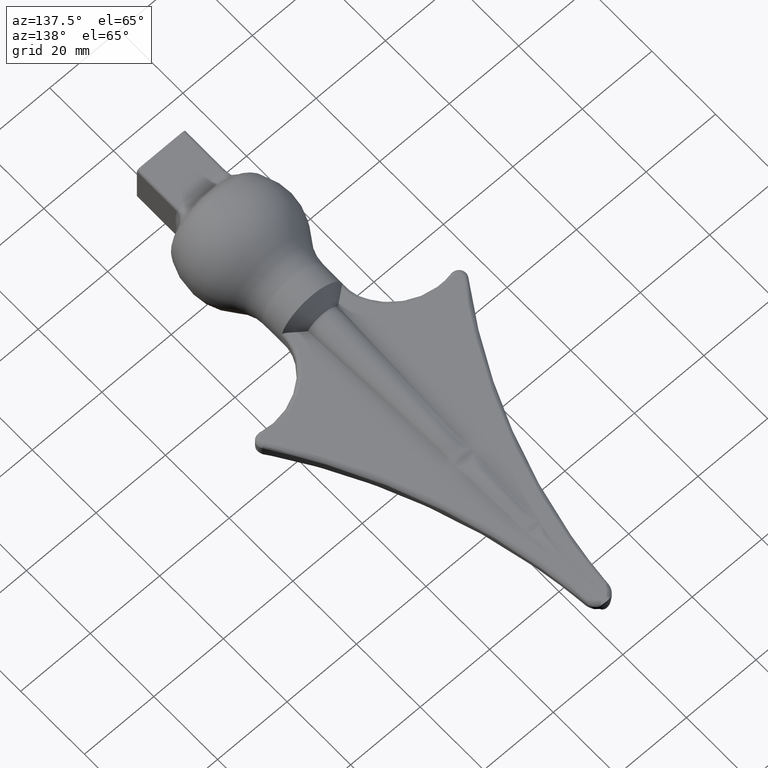
[diagram: clean part render]
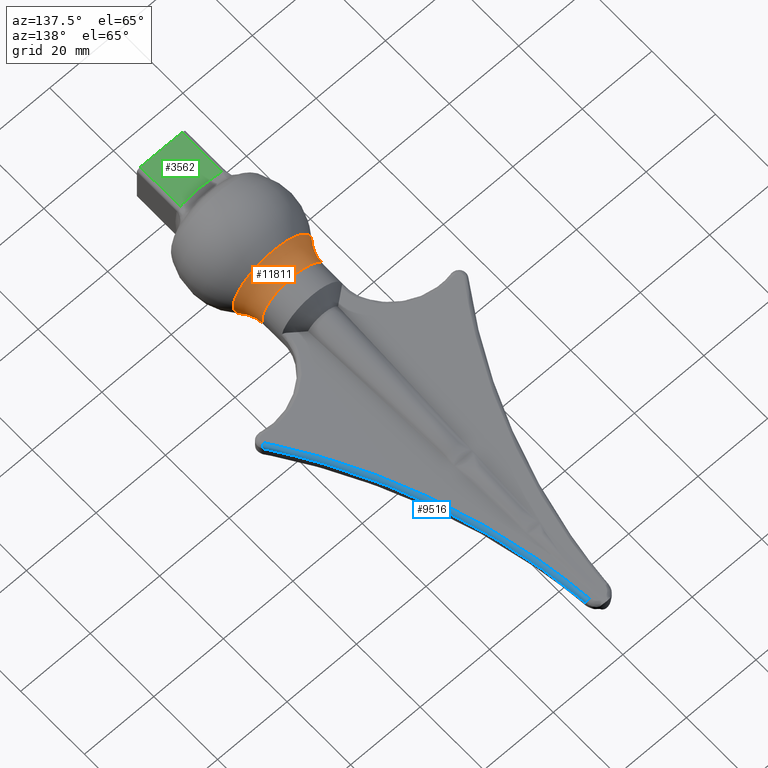
[diagram: same view with three faces highlighted in distinct colors, each labeled with its STEP entity id]
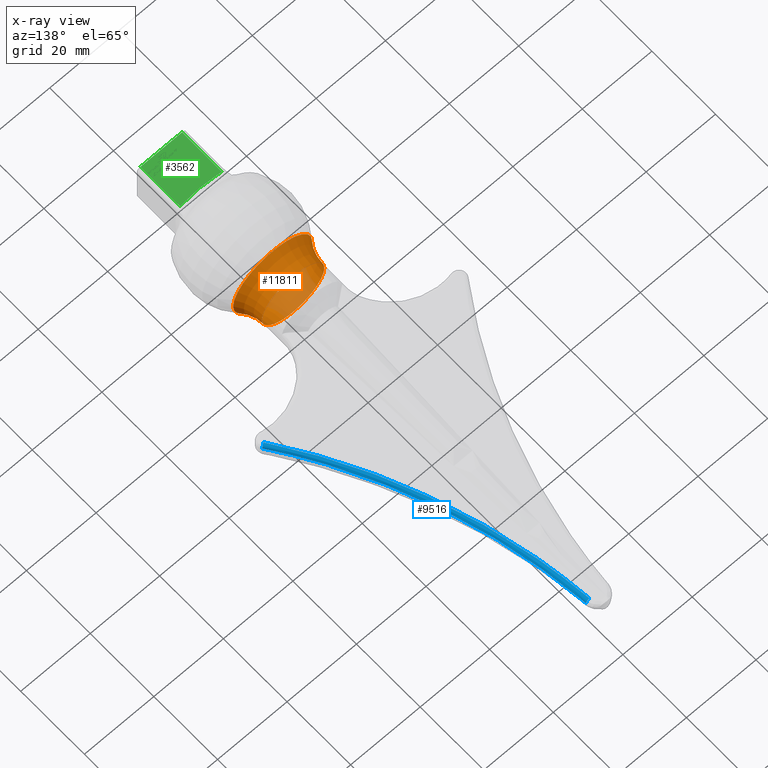
[diagram: x-ray of the same camera — body ghosted, the three highlighted faces saturated]
A machine part, auxiliary view with three faces highlighted in distinct colors.
The next image is the same camera in x-ray (body ghosted, the three faces saturated) — at least one of them is partly hidden behind the body in this view.
Their STEP definitions:

[orange] entity #11811 — the highlighted toroidal blend (fillet) surface has major radius 19 mm and minor (blend) radius 10 mm.
#168 = VERTEX_POINT ( 'NONE', #752 ) ;
#333 = AXIS2_PLACEMENT_3D ( 'NONE', #6738, #4573, #7790 ) ;
#752 = CARTESIAN_POINT ( 'NONE',  ( -9.000000000000003553, -3.559000110829106056, 0.000000000000000000 ) ) ;
#2375 = EDGE_CURVE ( 'NONE', #168, #168, #12192, .T. ) ;
#2680 = DIRECTION ( 'NONE',  ( -1.000000000000000000, -1.528311696827637747E-16, 0.000000000000000000 ) ) ;
#2725 = CARTESIAN_POINT ( 'NONE',  ( 1.224646799147354045E-15, -10.00000000000000355, 0.000000000000000000 ) ) ;
#2835 = CARTESIAN_POINT ( 'NONE',  ( 4.358518093891939170E-16, -3.559000110829104724, 0.000000000000000000 ) ) ;
#3590 = ORIENTED_EDGE ( 'NONE', *, *, #5992, .T. ) ;
#4573 = DIRECTION ( 'NONE',  ( -1.224646799147353454E-16, 1.000000000000000000, -0.000000000000000000 ) ) ;
#4717 = ORIENTED_EDGE ( 'NONE', *, *, #2375, .F. ) ;
#5992 = EDGE_CURVE ( 'NONE', #11412, #11412, #12722, .T. ) ;
#6738 = CARTESIAN_POINT ( 'NONE',  ( 0.000000000000000000, -3.559000110829105612, 0.000000000000000000 ) ) ;
#6879 = DIRECTION ( 'NONE',  ( -1.224646799147353454E-16, 1.000000000000000000, -0.000000000000000000 ) ) ;
#7278 = FACE_OUTER_BOUND ( 'NONE', #12780, .T. ) ;
#7790 = DIRECTION ( 'NONE',  ( -1.000000000000000000, -1.224646799147353207E-16, 0.000000000000000000 ) ) ;
#8038 = DIRECTION ( 'NONE',  ( -1.224646799147353454E-16, 1.000000000000000000, -0.000000000000000000 ) ) ;
#8165 = CARTESIAN_POINT ( 'NONE',  ( -11.35058692266521341, -10.00000000000000533, 0.000000000000000000 ) ) ;
#8171 = DIRECTION ( 'NONE',  ( -1.000000000000000000, -1.445602896647338670E-16, 0.000000000000000000 ) ) ;
#8442 = FACE_OUTER_BOUND ( 'NONE', #11058, .T. ) ;
#9414 = AXIS2_PLACEMENT_3D ( 'NONE', #2835, #8038, #8171 ) ;
#11058 = EDGE_LOOP ( 'NONE', ( #3590 ) ) ;
#11412 = VERTEX_POINT ( 'NONE', #8165 ) ;
#11811 = ADVANCED_FACE ( 'NONE', ( #7278, #8442 ), #12607, .F. ) ;
#12192 = CIRCLE ( 'NONE', #9414, 9.000000000000003553 ) ;
#12607 = TOROIDAL_SURFACE ( 'NONE', #333, 19.00000000000000711, 10.00000000000000178 ) ;
#12722 = CIRCLE ( 'NONE', #13430, 11.35058692266521518 ) ;
#12780 = EDGE_LOOP ( 'NONE', ( #4717 ) ) ;
#13430 = AXIS2_PLACEMENT_3D ( 'NONE', #2725, #6879, #2680 ) ;

[blue] entity #9516 — the highlighted face is a freeform B-spline surface patch.
#285 = CARTESIAN_POINT ( 'NONE',  ( 28.82035514264422105, 18.58238011966781045, 2.304395998740340623 ) ) ;
#514 = CARTESIAN_POINT ( 'NONE',  ( 16.50796664853037043, 41.70755901898824192, 1.065353754606669368 ) ) ;
#610 = VERTEX_POINT ( 'NONE', #10230 ) ;
#642 = CARTESIAN_POINT ( 'NONE',  ( 7.607228518922381610, 66.28903300742642557, 1.802220705185689997 ) ) ;
#898 =( BOUNDED_CURVE ( )  B_SPLINE_CURVE ( 3, ( #4199, #12730, #2311, #2215 ),
 .UNSPECIFIED., .F., .F. ) 
 B_SPLINE_CURVE_WITH_KNOTS ( ( 4, 4 ),
 ( 1.656925080422544383, 2.179560874338748011 ),
 .UNSPECIFIED. ) 
 CURVE ( )  GEOMETRIC_REPRESENTATION_ITEM ( )  RATIONAL_B_SPLINE_CURVE ( ( 1.000000000000000000, 0.9773668888780081554, 0.9773668888780081554, 1.000000000000000000 ) ) 
 REPRESENTATION_ITEM ( '' )  );
#1589 = CARTESIAN_POINT ( 'NONE',  ( 15.60005988164516033, 41.29665603295096332, 2.065298357547888486 ) ) ;
#1859 = ORIENTED_EDGE ( 'NONE', *, *, #4667, .F. ) ;
#2215 = CARTESIAN_POINT ( 'NONE',  ( 29.64071028528843144, 19.14370877401053050, 1.304451395798799096 ) ) ;
#2311 = CARTESIAN_POINT ( 'NONE',  ( 14.52450056497266218, 40.82870527511389724, 1.074666520594127483 ) ) ;
#2599 = DIRECTION ( 'NONE',  ( -0.8203551426442242667, -0.5718543870052714695, 0.000000000000000000 ) ) ;
#2629 = CARTESIAN_POINT ( 'NONE',  ( 13.87747527319818985, 47.71486719351497641, 1.997738240068449578 ) ) ;
#2978 = CARTESIAN_POINT ( 'NONE',  ( 3.810500263109116048, 85.52161505560957266, 1.599772473101360948 ) ) ;
#3682 = CARTESIAN_POINT ( 'NONE',  ( 9.432747051883911382, 59.98971737342832000, 0.8716270239732812897 ) ) ;
#3727 = CARTESIAN_POINT ( 'NONE',  ( 8.477672154327599685, 59.70069544307517617, 1.871571626915003339 ) ) ;
#3732 = CIRCLE ( 'NONE', #6405, 1.000000000000000444 ) ;
#3819 = CARTESIAN_POINT ( 'NONE',  ( 29.63580195890247992, 19.15075002591659370, 2.298413157621931990 ) ) ;
#3912 = ORIENTED_EDGE ( 'NONE', *, *, #11217, .F. ) ;
#3916 = CARTESIAN_POINT ( 'NONE',  ( 2.819433785285921701, 85.39088690661226622, 1.601148558877773187 ) ) ;
#4047 = CARTESIAN_POINT ( 'NONE',  ( 3.250000000000015543, 92.01852078382640343, 0.5322340895895287805 ) ) ;
#4199 = CARTESIAN_POINT ( 'NONE',  ( 3.250000000000000444, 92.01852078382670186, 0.5322340895895253388 ) ) ;
#4209 = FACE_OUTER_BOUND ( 'NONE', #9319, .T. ) ;
#4575 =( BOUNDED_CURVE ( )  B_SPLINE_CURVE ( 3, ( #285, #7650, #13267, #6870 ),
 .UNSPECIFIED., .F., .T. ) 
 B_SPLINE_CURVE_WITH_KNOTS ( ( 4, 4 ),
 ( 4.103624432840838665, 4.626260226757041849 ),
 .UNSPECIFIED. ) 
 CURVE ( )  GEOMETRIC_REPRESENTATION_ITEM ( )  RATIONAL_B_SPLINE_CURVE ( ( 1.000000000000000000, 0.9773668888780081554, 0.9773668888780081554, 1.000000000000000000 ) ) 
 REPRESENTATION_ITEM ( '' )  );
#4667 = EDGE_CURVE ( 'NONE', #9055, #610, #898, .T. ) ;
#4834 = CARTESIAN_POINT ( 'NONE',  ( 22.51441002302532013, 30.11582351507062327, 2.182991331420268910 ) ) ;
#5110 = CARTESIAN_POINT ( 'NONE',  ( 3.811980460272722304, 85.50977511863960956, 0.6012039559383387521 ) ) ;
#5249 = ORIENTED_EDGE ( 'NONE', *, *, #13083, .F. ) ;
#5744 = DIRECTION ( 'NONE',  ( -0.5718330669771581887, 0.8203245579445114233, -0.008634995346784345507 ) ) ;
#5818 = CARTESIAN_POINT ( 'NONE',  ( 6.642936848216939971, 66.03068744614495245, 1.804940132145848475 ) ) ;
#6127 = CARTESIAN_POINT ( 'NONE',  ( 2.253706788787196658, 91.94302420954910815, 1.532178692531070086 ) ) ;
#6146 = VERTEX_POINT ( 'NONE', #9137 ) ;
#6405 = AXIS2_PLACEMENT_3D ( 'NONE', #12174, #5744, #2599 ) ;
#6825 = CARTESIAN_POINT ( 'NONE',  ( 21.65172956464008536, 29.61852585529440773, 2.188226043628482387 ) ) ;
#6870 = CARTESIAN_POINT ( 'NONE',  ( 2.253706788787181559, 91.94302420954942079, 1.532178692531066755 ) ) ;
#7116 = AXIS2_PLACEMENT_3D ( 'NONE', #10368, #12413, #9353 ) ;
#7650 = CARTESIAN_POINT ( 'NONE',  ( 13.60337069085965034, 40.41194326411183368, 2.074611123535668789 ) ) ;
#7884 = CARTESIAN_POINT ( 'NONE',  ( 16.50334003763423851, 41.71736771905764840, 2.060869813483653612 ) ) ;
#7965 = CARTESIAN_POINT ( 'NONE',  ( 22.51955904886455073, 30.10676745179086922, 1.188281440686618895 ) ) ;
#8211 = CARTESIAN_POINT ( 'NONE',  ( 28.82035514264422105, 18.58238011966781045, 2.304395998740340623 ) ) ;
#8949 = CARTESIAN_POINT ( 'NONE',  ( 13.88166001710898456, 47.70457262044503466, 1.001806452584063756 ) ) ;
#8994 = CARTESIAN_POINT ( 'NONE',  ( 25.90480732764687843, 24.50305771556691425, 1.247661101752489454 ) ) ;
#9015 = EDGE_CURVE ( 'NONE', #10392, #610, #3732, .T. ) ;
#9055 = VERTEX_POINT ( 'NONE', #10305 ) ;
#9137 = CARTESIAN_POINT ( 'NONE',  ( 2.253706788787181559, 91.94302420954942079, 1.532178692531066755 ) ) ;
#9266 = CARTESIAN_POINT ( 'NONE',  ( 3.813810168105723264, 78.87582164662441642, 1.669728193193434240 ) ) ;
#9319 = EDGE_LOOP ( 'NONE', ( #11117, #1859, #3912, #5249 ) ) ;
#9353 = DIRECTION ( 'NONE',  ( -0.9962932112128188855, -0.08602230693982584886, 0.000000000000000000 ) ) ;
#9366 = CARTESIAN_POINT ( 'NONE',  ( 4.797665803799787909, 79.04949399560982215, 1.667900063203416217 ) ) ;
#9516 = ADVANCED_FACE ( 'NONE', ( #4209 ), #10474, .T. ) ;
#10023 = CARTESIAN_POINT ( 'NONE',  ( 29.64071028528843499, 19.14370877401052340, 1.304451395798799318 ) ) ;
#10230 = CARTESIAN_POINT ( 'NONE',  ( 29.64071028528843144, 19.14370877401053050, 1.304451395798799096 ) ) ;
#10305 = CARTESIAN_POINT ( 'NONE',  ( 3.250000000000000444, 92.01852078382670186, 0.5322340895895253388 ) ) ;
#10368 = CARTESIAN_POINT ( 'NONE',  ( 2.253706788787181559, 91.93249847688687737, 0.5322340895895253388 ) ) ;
#10392 = VERTEX_POINT ( 'NONE', #8211 ) ;
#10474 =( BOUNDED_SURFACE ( )  B_SPLINE_SURFACE ( 3, 2, ( 
 ( #10023, #3819, #11261 ),
 ( #8994, #11172, #13183 ),
 ( #7965, #4834, #6825 ),
 ( #514, #7884, #1589 ),
 ( #8949, #2629, #12250 ),
 ( #3682, #11079, #3727 ),
 ( #13316, #642, #5818 ),
 ( #11129, #9366, #9266 ),
 ( #5110, #2978, #3916 ),
 ( #4047, #12519, #6127 ) ),
 .UNSPECIFIED., .F., .F., .T. ) 
 B_SPLINE_SURFACE_WITH_KNOTS ( ( 4, 2, 2, 2, 4 ),
 ( 3, 3 ),
 ( 4.103624432840838665, 4.234283381319889017, 4.364942329798940257, 4.495601278277991497, 4.626260226757041849 ),
 ( 0.000000000000000000, 1.000000000000000000 ),
 .UNSPECIFIED. ) 
 GEOMETRIC_REPRESENTATION_ITEM ( )  RATIONAL_B_SPLINE_SURFACE ( (
 ( 1.000000000000000000, 0.7092316921851136158, 1.000000000000000000),
 ( 1.000000000000000000, 0.7090991316522267107, 1.000000000000000000),
 ( 1.000000000000000000, 0.7089604829556002130, 1.000000000000000000),
 ( 1.000000000000000000, 0.7086733687835882201, 1.000000000000000000),
 ( 1.000000000000000000, 0.7085249016670301936, 1.000000000000000000),
 ( 1.000000000000000000, 0.7082206594354735207, 1.000000000000000000),
 ( 1.000000000000000000, 0.7080648857560056797, 1.000000000000000000),
 ( 1.000000000000000000, 0.7077486740310907631, 1.000000000000000000),
 ( 1.000000000000000000, 0.7075882384482506948, 1.000000000000000000),
 ( 1.000000000000000000, 0.7074268328971778930, 1.000000000000000000) ) ) 
 REPRESENTATION_ITEM ( '' )  SURFACE ( )  );
#11079 = CARTESIAN_POINT ( 'NONE',  ( 9.429260959275543641, 60.00060544608746937, 1.868414679514694310 ) ) ;
#11117 = ORIENTED_EDGE ( 'NONE', *, *, #9015, .T. ) ;
#11129 = CARTESIAN_POINT ( 'NONE',  ( 4.799771568908023589, 79.03785598622845043, 0.6697835902521174223 ) ) ;
#11172 = CARTESIAN_POINT ( 'NONE',  ( 25.89935639343510232, 24.51153119340534303, 2.241983882176694198 ) ) ;
#11217 = EDGE_CURVE ( 'NONE', #6146, #9055, #13063, .T. ) ;
#11261 = CARTESIAN_POINT ( 'NONE',  ( 28.82035514264420684, 18.58238011966780334, 2.304395998740340179 ) ) ;
#12174 = CARTESIAN_POINT ( 'NONE',  ( 28.82035514264422105, 18.57185438700526703, 1.304451395798799318 ) ) ;
#12250 = CARTESIAN_POINT ( 'NONE',  ( 12.95624453936627773, 47.33364972508507407, 2.001751055525424317 ) ) ;
#12413 = DIRECTION ( 'NONE',  ( -0.08601757681721056148, 0.9962384278755678224, -0.01048672029342359070 ) ) ;
#12519 = CARTESIAN_POINT ( 'NONE',  ( 3.249098724555799844, 92.02895917636024592, 1.531274113933058345 ) ) ;
#12730 = CARTESIAN_POINT ( 'NONE',  ( 5.523885209025722887, 65.68283557121814908, 0.8112999469301472866 ) ) ;
#13063 = CIRCLE ( 'NONE', #7116, 0.9999999999999996669 ) ;
#13083 = EDGE_CURVE ( 'NONE', #10392, #6146, #4575, .T. ) ;
#13183 = CARTESIAN_POINT ( 'NONE',  ( 25.05954616515368372, 23.97745805427248555, 2.247605704691870709 ) ) ;
#13267 = CARTESIAN_POINT ( 'NONE',  ( 4.542751232539733230, 65.43176776219013391, 1.811244549871688925 ) ) ;
#13316 = CARTESIAN_POINT ( 'NONE',  ( 7.610162310643268313, 66.27778889964071141, 0.8049955292040825716 ) ) ;

[green] entity #3562 — the highlighted planar face has unit normal (-0, 0, 1).
#62 = DIRECTION ( 'NONE',  ( -0.000000000000000000, 0.000000000000000000, 1.000000000000000000 ) ) ;
#467 = EDGE_CURVE ( 'NONE', #879, #12435, #6832, .T. ) ;
#577 = CARTESIAN_POINT ( 'NONE',  ( 6.000000000000001776, -32.44597341888051290, 7.000000000000000888 ) ) ;
#693 = VERTEX_POINT ( 'NONE', #8528 ) ;
#879 = VERTEX_POINT ( 'NONE', #7444 ) ;
#1074 = CARTESIAN_POINT ( 'NONE',  ( -5.227613973244049639, -32.58359054443952374, 7.000000000000000888 ) ) ;
#1263 = CARTESIAN_POINT ( 'NONE',  ( -5.486082634261917335, -32.54336807664721221, 7.000000000000000888 ) ) ;
#1351 = VECTOR ( 'NONE', #3814, 1000.000000000000000 ) ;
#1640 = CARTESIAN_POINT ( 'NONE',  ( -0.8744529289058696753, -32.89960675810379342, 6.999999999999999112 ) ) ;
#1937 = ORIENTED_EDGE ( 'NONE', *, *, #11916, .T. ) ;
#1979 = AXIS2_PLACEMENT_3D ( 'NONE', #2270, #62, #11796 ) ;
#2270 = CARTESIAN_POINT ( 'NONE',  ( -7.000000000000000000, -26.99999999999999645, 7.000000000000000888 ) ) ;
#2365 = ORIENTED_EDGE ( 'NONE', *, *, #12959, .T. ) ;
#2406 = CARTESIAN_POINT ( 'NONE',  ( 4.361310651120741788, -32.71840324217724572, 7.000000000000000888 ) ) ;
#2763 = CARTESIAN_POINT ( 'NONE',  ( 0.8744529289058757815, -32.89960675810379342, 7.000000000000000000 ) ) ;
#2798 = B_SPLINE_CURVE_WITH_KNOTS ( 'NONE', 3,
 ( #13100, #2406, #5864, #10160, #2763, #1640, #5914, #5780, #9087, #3686 ),
 .UNSPECIFIED., .F., .F.,
 ( 4, 2, 2, 2, 4 ),
 ( 0.000000000000000000, 0.002618578531405694066, 0.005237157062811386397, 0.007855735594217079162, 0.01047431412562277106 ),
 .UNSPECIFIED. ) ;
#2947 = CARTESIAN_POINT ( 'NONE',  ( -6.000000000000000000, -26.99999999999999645, 7.000000000000000888 ) ) ;
#3125 = DIRECTION ( 'NONE',  ( 1.224646799147353454E-16, -1.000000000000000000, 0.000000000000000000 ) ) ;
#3174 = ORIENTED_EDGE ( 'NONE', *, *, #467, .T. ) ;
#3562 = ADVANCED_FACE ( 'NONE', ( #7028 ), #6324, .T. ) ;
#3683 = VERTEX_POINT ( 'NONE', #4475 ) ;
#3686 = CARTESIAN_POINT ( 'NONE',  ( -5.227613973244049639, -32.58359054443952374, 7.000000000000000888 ) ) ;
#3814 = DIRECTION ( 'NONE',  ( -1.224646799147353454E-16, 1.000000000000000000, -0.000000000000000000 ) ) ;
#3951 = B_SPLINE_CURVE_WITH_KNOTS ( 'NONE', 3,
 ( #5353, #1263, #8626, #12724 ),
 .UNSPECIFIED., .F., .F.,
 ( 4, 4 ),
 ( 0.000000000000000000, 0.0007845499649958353550 ),
 .UNSPECIFIED. ) ;
#4475 = CARTESIAN_POINT ( 'NONE',  ( -5.999999999999999112, -32.44597341888052000, 7.000000000000000888 ) ) ;
#4565 = VERTEX_POINT ( 'NONE', #1074 ) ;
#4811 = CARTESIAN_POINT ( 'NONE',  ( 5.227613973244056744, -32.58359054443952374, 7.000000000000000888 ) ) ;
#5353 = CARTESIAN_POINT ( 'NONE',  ( -5.227613973244049639, -32.58359054443952374, 7.000000000000000888 ) ) ;
#5674 = VERTEX_POINT ( 'NONE', #13387 ) ;
#5780 = CARTESIAN_POINT ( 'NONE',  ( -3.491371836818086383, -32.79307677966139067, 7.000000000000000000 ) ) ;
#5864 = CARTESIAN_POINT ( 'NONE',  ( 3.491371836818096597, -32.79307677966140488, 7.000000000000002665 ) ) ;
#5897 = DIRECTION ( 'NONE',  ( -1.000000000000000000, -0.000000000000000000, -0.000000000000000000 ) ) ;
#5914 = CARTESIAN_POINT ( 'NONE',  ( -1.747920786913177871, -32.88331148535732495, 7.000000000000003553 ) ) ;
#6324 = PLANE ( 'NONE',  #1979 ) ;
#6832 = B_SPLINE_CURVE_WITH_KNOTS ( 'NONE', 3,
 ( #577, #10088, #7988, #4811 ),
 .UNSPECIFIED., .F., .F.,
 ( 4, 4 ),
 ( 0.000000000000000000, 0.0007845499649958326445 ),
 .UNSPECIFIED. ) ;
#7028 = FACE_OUTER_BOUND ( 'NONE', #8872, .T. ) ;
#7029 = CARTESIAN_POINT ( 'NONE',  ( -6.999999999999998224, -45.00000000000000000, 7.000000000000000888 ) ) ;
#7444 = CARTESIAN_POINT ( 'NONE',  ( 6.000000000000001776, -32.44597341888051290, 7.000000000000000888 ) ) ;
#7988 = CARTESIAN_POINT ( 'NONE',  ( 5.486082634261924440, -32.54336807664721931, 7.000000000000000888 ) ) ;
#8008 = CARTESIAN_POINT ( 'NONE',  ( 6.000000000000000888, -26.99999999999999645, 7.000000000000000888 ) ) ;
#8049 = VECTOR ( 'NONE', #3125, 1000.000000000000000 ) ;
#8510 = VECTOR ( 'NONE', #5897, 1000.000000000000000 ) ;
#8528 = CARTESIAN_POINT ( 'NONE',  ( 6.000000000000002665, -45.00000000000000000, 7.000000000000000888 ) ) ;
#8626 = CARTESIAN_POINT ( 'NONE',  ( -5.743598873781384562, -32.49780007461301778, 7.000000000000000888 ) ) ;
#8759 = EDGE_CURVE ( 'NONE', #693, #5674, #11331, .T. ) ;
#8872 = EDGE_LOOP ( 'NONE', ( #1937, #2365, #8896, #11676, #13482, #3174 ) ) ;
#8896 = ORIENTED_EDGE ( 'NONE', *, *, #10914, .T. ) ;
#9087 = CARTESIAN_POINT ( 'NONE',  ( -4.361310651120733795, -32.71840324217723861, 6.999999999999999112 ) ) ;
#9561 = LINE ( 'NONE', #2947, #8049 ) ;
#9943 = CARTESIAN_POINT ( 'NONE',  ( 5.227613973244056744, -32.58359054443952374, 7.000000000000000888 ) ) ;
#10088 = CARTESIAN_POINT ( 'NONE',  ( 5.743598873781386338, -32.49780007461299647, 7.000000000000000888 ) ) ;
#10160 = CARTESIAN_POINT ( 'NONE',  ( 1.747920786913185864, -32.88331148535731785, 7.000000000000000000 ) ) ;
#10914 = EDGE_CURVE ( 'NONE', #3683, #5674, #9561, .T. ) ;
#11331 = LINE ( 'NONE', #7029, #8510 ) ;
#11676 = ORIENTED_EDGE ( 'NONE', *, *, #8759, .F. ) ;
#11796 = DIRECTION ( 'NONE',  ( 1.000000000000000000, 0.000000000000000000, 0.000000000000000000 ) ) ;
#11916 = EDGE_CURVE ( 'NONE', #12435, #4565, #2798, .T. ) ;
#12435 = VERTEX_POINT ( 'NONE', #9943 ) ;
#12724 = CARTESIAN_POINT ( 'NONE',  ( -5.999999999999999112, -32.44597341888052000, 7.000000000000000888 ) ) ;
#12924 = LINE ( 'NONE', #8008, #1351 ) ;
#12959 = EDGE_CURVE ( 'NONE', #4565, #3683, #3951, .T. ) ;
#13100 = CARTESIAN_POINT ( 'NONE',  ( 5.227613973244056744, -32.58359054443952374, 7.000000000000000888 ) ) ;
#13115 = EDGE_CURVE ( 'NONE', #693, #879, #12924, .T. ) ;
#13387 = CARTESIAN_POINT ( 'NONE',  ( -5.999999999999997335, -45.00000000000000000, 7.000000000000000888 ) ) ;
#13482 = ORIENTED_EDGE ( 'NONE', *, *, #13115, .T. ) ;